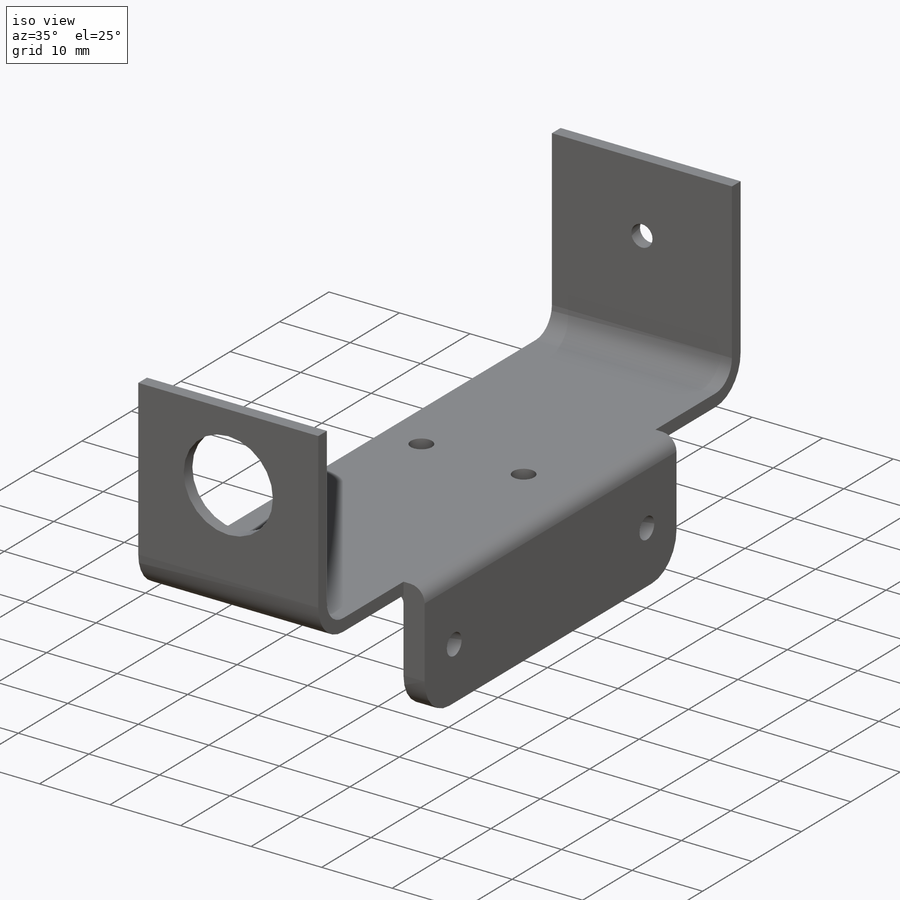
[diagram: iso view]
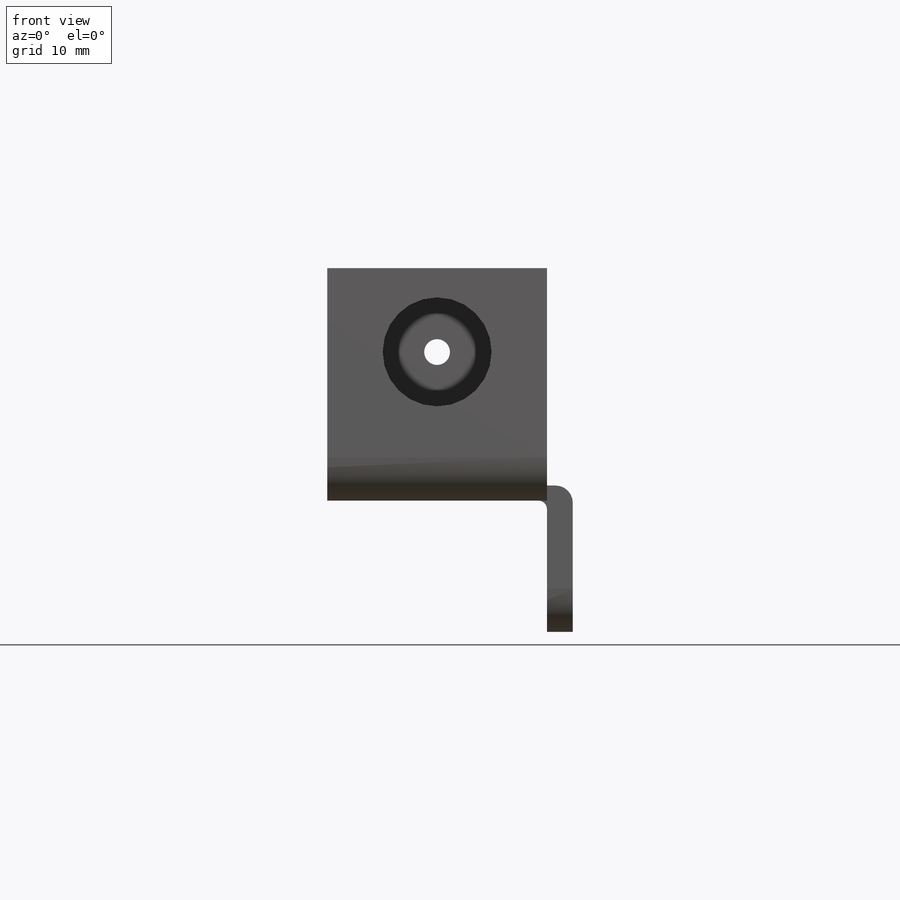
[diagram: front view]
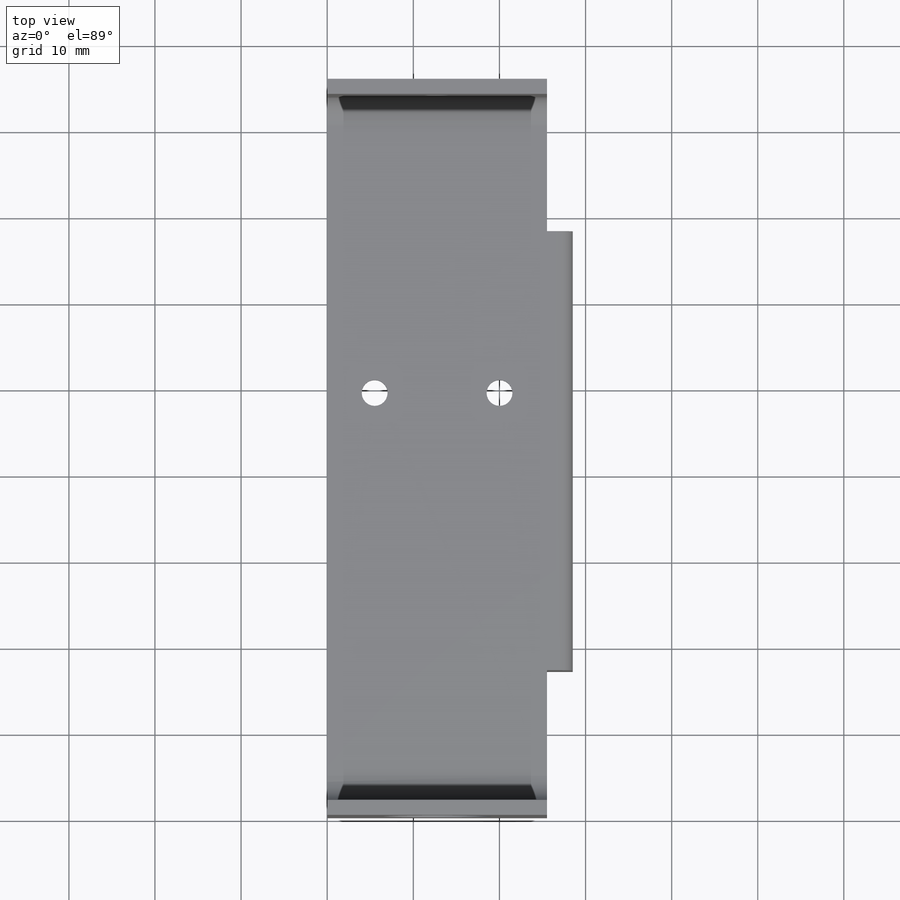
[diagram: top view]
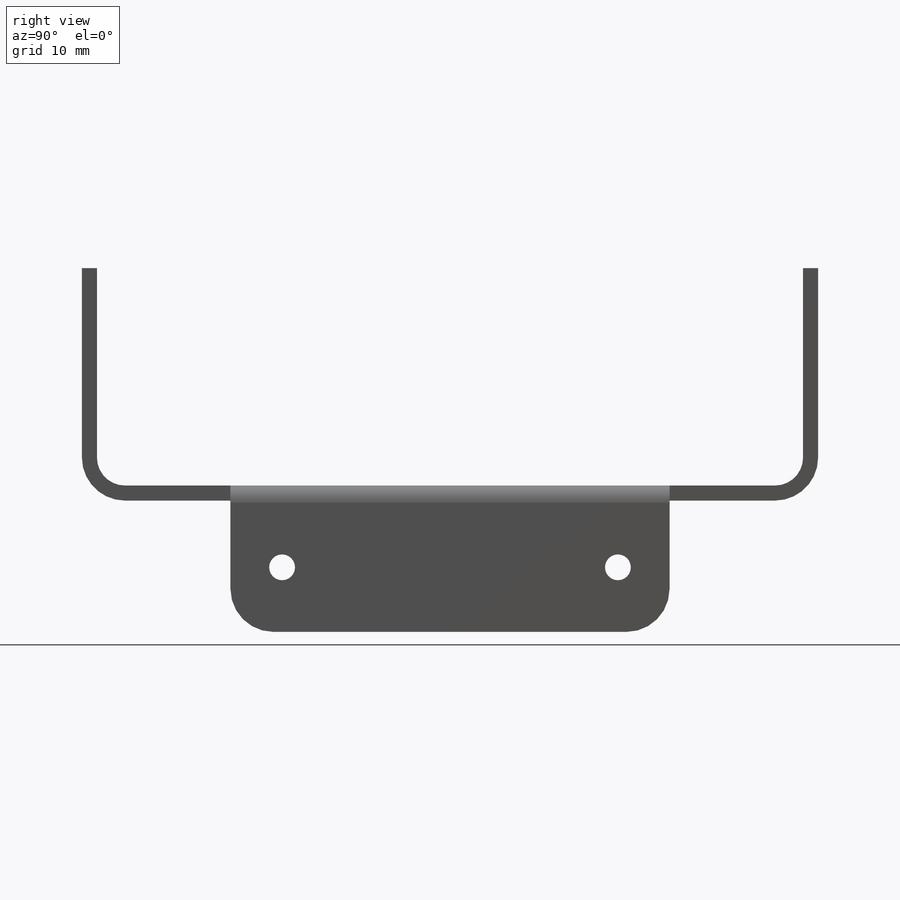
[diagram: right view]
SOLIDWORKS PART (.sldprt)
format: sldprt  version: not decoded by parser v0  size: 262,656 bytes
history: native  units: mm
features: sketch x6, cut_extrude x4, plane x3, fillet x3, extrude x2, material x1 (+10 scaffold rows collapsed)
feature tree (29):
  scaffold x10  (default folders/planes/origin — collapsed)
  material  "1023 Tôle d'acier au carbone (SS)"
  plane  "Plan de face"
  plane  "Plan de dessus"
  plane  "Plan de droite"
  sketch  "Esquisse1"  dims[D3=5.0mm D1=85.5mm D2=27.0mm D4=1.75mm]
  extrude  "Boss.-Extru.1"  Depth=25.52mm
  sketch  "Esquisse2"  dims[D1=12.65mm D2=9.75mm]
  cut_extrude  "Enlèv. mat.-Extru.1"  [1 undecoded]
  sketch  "Esquisse3"  dims[D1=3.0mm D2=9.75mm]
  cut_extrude  "Enlèv. mat.-Extru.2"  Depth=25.52mm
  sketch  "Esquisse6"  dims[D1=51.0mm D2=3.0mm D3=3.0mm]
  extrude  "Boss.-Extru.2"  Depth=17mm
  fillet  "Congé1"  Radius=2mm
  fillet  "Congé2"  Radius=1mm
  sketch  "Esquisse7"  dims[D2=3.0mm D1=39.0mm]
  cut_extrude  "Enlèv. mat.-Extru.3"  [1 undecoded]
  fillet  "Congé3"  Radius=5mm
  sketch  "Esquisse8"  dims[D2=3.0mm D1=49.45mm D3=14.5mm D4=7.25mm]
  cut_extrude  "Enlèv. mat.-Extru.4"  [1 undecoded]
decode coverage: 12 of 15 modeling features carry decoded parameters
note: 3 parameter values undecoded
summary: no parameter record found for 3 features
note: suppression state not decoded; provenance and decode notes live in map.json
